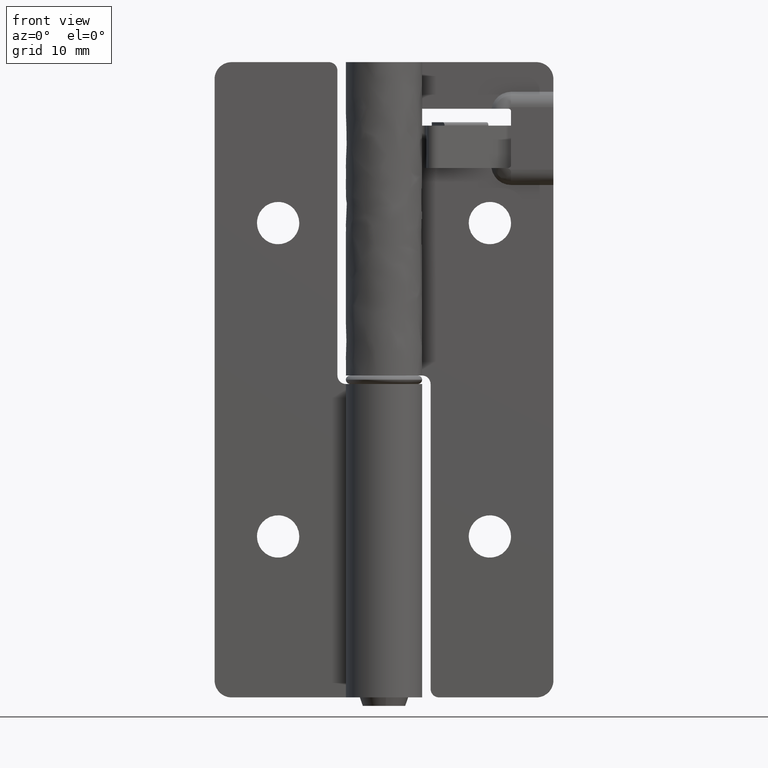
[diagram: clean part render]
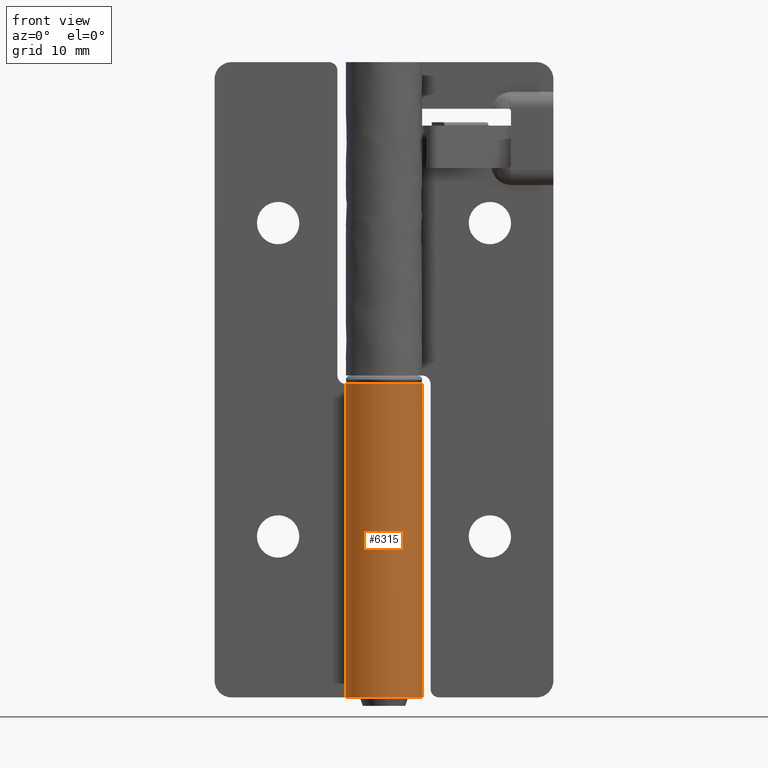
[diagram: same view with one face highlighted and labeled with its STEP entity id]
A machine part, front view. The second image highlights one B-rep face of the part: STEP entity #6315.
In plain terms, the highlighted face is a freeform B-spline surface patch.
Its self-contained STEP definition (entity closure, byte-faithful):
#5806=CARTESIAN_POINT('',(-1.644518E-011,4.500000000006279,37.0));
#5807=VERTEX_POINT('',#5806);
#5813=CARTESIAN_POINT('',(-1.644524E-011,4.499999999999945,0.0));
#5814=VERTEX_POINT('',#5813);
#5815=CARTESIAN_POINT('',(-1.644518E-011,4.500000000006279,37.0));
#5816=CARTESIAN_POINT('',(-1.644524E-011,4.499999999999945,0.0));
#5817=QUASI_UNIFORM_CURVE('',1,(#5815,#5816),.UNSPECIFIED.,.F.,.U.);
#5818=EDGE_CURVE('',#5807,#5814,#5817,.T.);
#6118=CARTESIAN_POINT('',(-4.031128874170700,1.999999999986930,37.0));
#6119=VERTEX_POINT('',#6118);
#6125=CARTESIAN_POINT('',(-1.644518E-011,4.500000000006279,37.0));
#6126=CARTESIAN_POINT('',(0.318250250092302,4.500052738886503,36.999999999999993));
#6127=CARTESIAN_POINT('',(0.833497774965308,4.445093792580119,37.000000000000057));
#6128=CARTESIAN_POINT('',(1.636807449588845,4.216003472248509,36.999999999999993));
#6129=CARTESIAN_POINT('',(2.419221267294355,3.838493689440788,37.000000000000050));
#6130=CARTESIAN_POINT('',(3.135698998514261,3.268642092371259,36.999999999999950));
#6131=CARTESIAN_POINT('',(3.754203595990222,2.537149770234727,36.999999999999737));
#6132=CARTESIAN_POINT('',(4.193244888875647,1.733245907433843,37.000000000000227));
#6133=CARTESIAN_POINT('',(4.418557661236964,0.942149526955254,36.999999999999467));
#6134=CARTESIAN_POINT('',(4.508171749529702,0.234623870040568,37.000000000001052));
#6135=CARTESIAN_POINT('',(4.500063500429714,-0.556339292564879,36.999999999997812));
#6136=CARTESIAN_POINT('',(4.317994518037510,-1.360907577575157,37.000000000002110));
#6137=CARTESIAN_POINT('',(3.991480848736453,-2.112997247441616,36.999999999998863));
#6138=CARTESIAN_POINT('',(3.590131993176100,-2.759045119073480,37.000000000000590));
#6139=CARTESIAN_POINT('',(3.061475080811667,-3.328827620923796,36.999999999999481));
#6140=CARTESIAN_POINT('',(2.397045732195261,-3.835097782573561,36.999999999998550));
#6141=CARTESIAN_POINT('',(1.599232471970266,-4.249873172662801,37.000000000001407));
#6142=CARTESIAN_POINT('',(0.740105088976855,-4.466467876793897,36.999999999999453));
#6143=CARTESIAN_POINT('',(-0.093485776823230,-4.516506720512610,37.000000000000078));
#6144=CARTESIAN_POINT('',(-0.866363751645549,-4.445653665465141,37.000000000000043));
#6145=CARTESIAN_POINT('',(-1.596895974078505,-4.228811371387243,36.999999999999979));
#6146=CARTESIAN_POINT('',(-2.280208991967514,-3.898556483620579,37.000000000000043));
#6147=CARTESIAN_POINT('',(-2.972643610330969,-3.428348473260245,36.999999999999972));
#6148=CARTESIAN_POINT('',(-3.630350577904243,-2.724954048975418,37.000000000000007));
#6149=CARTESIAN_POINT('',(-4.164072536053860,-1.802436983581963,37.000000000000007));
#6150=CARTESIAN_POINT('',(-4.432408223675867,-0.942020977864722,37.0));
#6151=CARTESIAN_POINT('',(-4.514374047796919,-0.125364943800254,36.999999999999893));
#6152=CARTESIAN_POINT('',(-4.481345609298223,0.587945531927249,37.000000000001300));
#6153=CARTESIAN_POINT('',(-4.330521149546696,1.302654884817643,36.999999999994849));
#6154=CARTESIAN_POINT('',(-4.138909862103771,1.782793092552243,37.000000000012747));
#6155=CARTESIAN_POINT('',(-4.031128874170700,1.999999999986930,37.0));
#6156=B_SPLINE_CURVE_WITH_KNOTS('',3,(#6125,#6126,#6127,#6128,#6129,#6130,#6131,#6132,#6133,#6134,#6135,#6136,#6137,#6138,#6139,#6140,#6141,#6142,#6143,#6144,#6145,#6146,#6147,#6148,#6149,#6150,#6151,#6152,#6153,#6154,#6155),.UNSPECIFIED.,.F.,.U.,(4,1,1,1,1,1,1,1,1,1,1,1,1,1,1,1,1,1,1,1,1,1,1,1,1,1,1,1,4),(0.000000371058515,0.954741405399972,1.545828306777917,2.500599538867814,3.546323568599519,4.273763606413429,5.364970308768012,6.274208676363735,6.728863571631340,7.501787997855594,8.638449119126578,9.184036272468198,9.956955237247277,10.911745545587520,11.502785239566011,12.457519893283729,13.594174770117149,14.139768931386360,14.958160635523930,15.912935550190371,16.413081493092339,17.231458102151329,18.413515764570491,19.277356710369730,20.414015771379599,21.096006832297210,21.732520613677909,22.550905804932022,23.278342379582401),.UNSPECIFIED.);
#6157=EDGE_CURVE('',#5807,#6119,#6156,.T.);
#6176=CARTESIAN_POINT('',(-4.031128874170700,1.999999999986930,0.0));
#6177=VERTEX_POINT('',#6176);
#6178=CARTESIAN_POINT('',(-1.644524E-011,4.499999999999945,0.0));
#6179=CARTESIAN_POINT('',(0.318250256035495,4.500053033857877,0.0));
#6180=CARTESIAN_POINT('',(0.833499619635037,4.445097307722488,0.0));
#6181=CARTESIAN_POINT('',(1.592982775462846,4.228484372308849,0.0));
#6182=CARTESIAN_POINT('',(2.200365440161224,3.946641887348513,0.0));
#6183=CARTESIAN_POINT('',(2.906664127712050,3.472755834939446,0.0));
#6184=CARTESIAN_POINT('',(3.534665105281328,2.847738029997962,0.0));
#6185=CARTESIAN_POINT('',(4.109576315690251,1.931639769742997,0.0));
#6186=CARTESIAN_POINT('',(4.419911256678842,1.020031154247251,0.0));
#6187=CARTESIAN_POINT('',(4.512329760981714,0.188534410786998,0.0));
#6188=CARTESIAN_POINT('',(4.486382510510715,-0.539784591424210,0.0));
#6189=CARTESIAN_POINT('',(4.329353698307734,-1.346809465767984,0.0));
#6190=CARTESIAN_POINT('',(3.945143569909770,-2.244565340583545,0.0));
#6191=CARTESIAN_POINT('',(3.386756517724297,-3.007504863775131,0.0));
#6192=CARTESIAN_POINT('',(2.781276656538480,-3.562551176245159,0.0));
#6193=CARTESIAN_POINT('',(2.069553510524373,-4.029331482539836,0.0));
#6194=CARTESIAN_POINT('',(1.290864333081678,-4.343372974916055,0.0));
#6195=CARTESIAN_POINT('',(0.303753972294434,-4.524337679106809,0.0));
#6196=CARTESIAN_POINT('',(-0.582387532893804,-4.497008390929601,0.0));
#6197=CARTESIAN_POINT('',(-1.467879924591681,-4.277338907668327,0.0));
#6198=CARTESIAN_POINT('',(-2.108513281976204,-3.995210137052195,0.0));
#6199=CARTESIAN_POINT('',(-2.838895367331962,-3.530941891297253,0.0));
#6200=CARTESIAN_POINT('',(-3.468815554905319,-2.928169111407688,0.0));
#6201=CARTESIAN_POINT('',(-3.977516741216007,-2.151642236373612,0.0));
#6202=CARTESIAN_POINT('',(-4.279404858468083,-1.453918109270773,0.0));
#6203=CARTESIAN_POINT('',(-4.457619081231107,-0.746186678298605,0.0));
#6204=CARTESIAN_POINT('',(-4.527393727189041,0.071910425961624,0.0));
#6205=CARTESIAN_POINT('',(-4.426486543034867,1.011939820411056,0.0));
#6206=CARTESIAN_POINT('',(-4.192859843433988,1.674207303293167,0.0));
#6207=CARTESIAN_POINT('',(-4.031128874170700,1.999999999986930,0.0));
#6208=B_SPLINE_CURVE_WITH_KNOTS('',3,(#6178,#6179,#6180,#6181,#6182,#6183,#6184,#6185,#6186,#6187,#6188,#6189,#6190,#6191,#6192,#6193,#6194,#6195,#6196,#6197,#6198,#6199,#6200,#6201,#6202,#6203,#6204,#6205,#6206,#6207),.UNSPECIFIED.,.F.,.U.,(4,1,1,1,1,1,1,1,1,1,1,1,1,1,1,1,1,1,1,1,1,1,1,1,1,1,1,4),(0.000000371059233,0.954741405400643,1.545828306778528,2.364197980756622,2.955260493867240,4.091918159898778,5.001240091269100,6.183305490663415,6.956194580801149,7.501787997855367,8.365649352455479,9.411365325355620,10.411613528399830,11.184556758352290,11.866471463073211,12.957667665068090,13.685103675722379,14.867229453710060,15.594678389434600,16.413081493090580,16.958640680065891,18.186193889478300,19.004579081996852,19.732021336094022,20.459482340547090,21.186930951409771,22.187176023423639,23.278342379579751),.UNSPECIFIED.);
#6209=EDGE_CURVE('',#5814,#6177,#6208,.T.);
#6283=CARTESIAN_POINT('',(-3.954677006994487,2.147214421166947,37.925000000000011));
#6284=CARTESIAN_POINT('',(-3.954677006994487,2.147214421166947,-0.948124999999997));
#6285=CARTESIAN_POINT('',(-6.559456388457253,-2.650192408155066,37.925000000000011));
#6286=CARTESIAN_POINT('',(-6.559456388457253,-2.650192408155066,-0.948124999999997));
#6287=CARTESIAN_POINT('',(-1.353176097782849,-4.291726278367399,37.925000000000011));
#6288=CARTESIAN_POINT('',(-1.353176097782849,-4.291726278367399,-0.948124999999997));
#6289=CARTESIAN_POINT('',(3.853104192891553,-5.933260148579736,37.925000000000011));
#6290=CARTESIAN_POINT('',(3.853104192891553,-5.933260148579736,-0.948124999999997));
#6291=CARTESIAN_POINT('',(4.471073350529743,-0.509414461954150,37.925000000000011));
#6292=CARTESIAN_POINT('',(4.471073350529743,-0.509414461954150,-0.948124999999997));
#6293=CARTESIAN_POINT('',(5.089042508167935,4.914431224671435,37.925000000000011));
#6294=CARTESIAN_POINT('',(5.089042508167935,4.914431224671435,-0.948124999999997));
#6295=CARTESIAN_POINT('',(-0.353065930791731,4.486128001798907,37.925000000000011));
#6296=CARTESIAN_POINT('',(-0.353065930791731,4.486128001798907,-0.948124999999997));
#6304=(BOUNDED_SURFACE()B_SPLINE_SURFACE(1,2,((#6283,#6285,#6287,#6289,#6291,#6293,#6295),(#6284,#6286,#6288,#6290,#6292,#6294,#6296)),.UNSPECIFIED.,.F.,.F.,.U.)B_SPLINE_SURFACE_WITH_KNOTS((2,2),(3,2,2,3),(0.0,38.873125000000009),(0.0,8.489351137881871,16.978702275763741,25.468053413645610),.UNSPECIFIED.)GEOMETRIC_REPRESENTATION_ITEM()RATIONAL_B_SPLINE_SURFACE(((1.0,0.636078220277764,1.0,0.636078220277764,1.0,0.636078220277764,1.0),(1.0,0.636078220277764,1.0,0.636078220277764,1.0,0.636078220277764,1.0)))REPRESENTATION_ITEM('')SURFACE());
#6305=ORIENTED_EDGE('',*,*,#6157,.T.);
#6306=CARTESIAN_POINT('',(-4.031128874170700,1.999999999986930,37.0));
#6307=CARTESIAN_POINT('',(-4.031128874170700,1.999999999986930,0.0));
#6308=QUASI_UNIFORM_CURVE('',1,(#6306,#6307),.UNSPECIFIED.,.F.,.U.);
#6309=EDGE_CURVE('',#6119,#6177,#6308,.T.);
#6310=ORIENTED_EDGE('',*,*,#6309,.T.);
#6311=ORIENTED_EDGE('',*,*,#6209,.F.);
#6312=ORIENTED_EDGE('',*,*,#5818,.F.);
#6313=EDGE_LOOP('',(#6305,#6310,#6311,#6312));
#6314=FACE_OUTER_BOUND('',#6313,.T.);
#6315=ADVANCED_FACE('',(#6314),#6304,.T.);